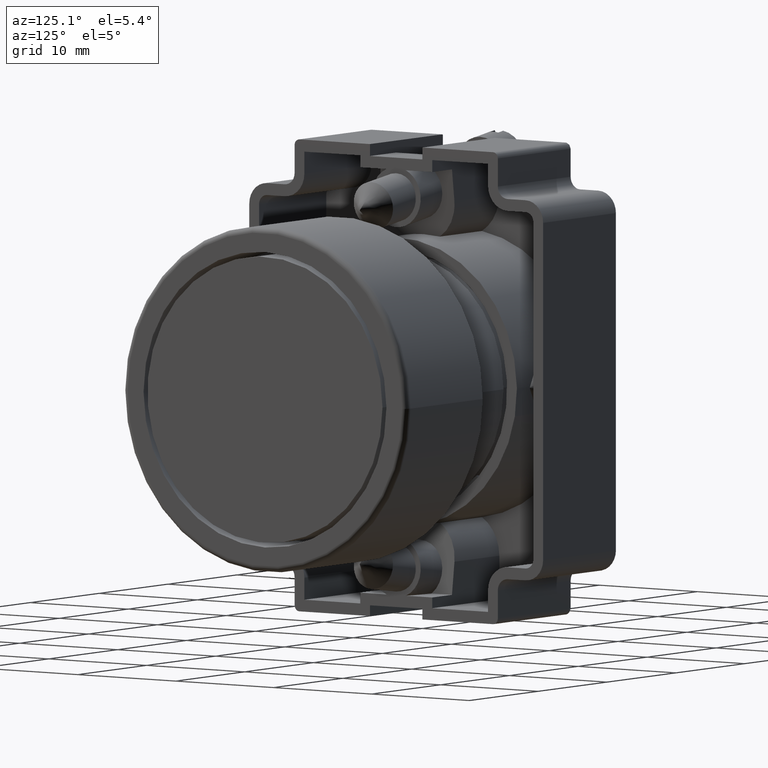
[diagram: clean part render]
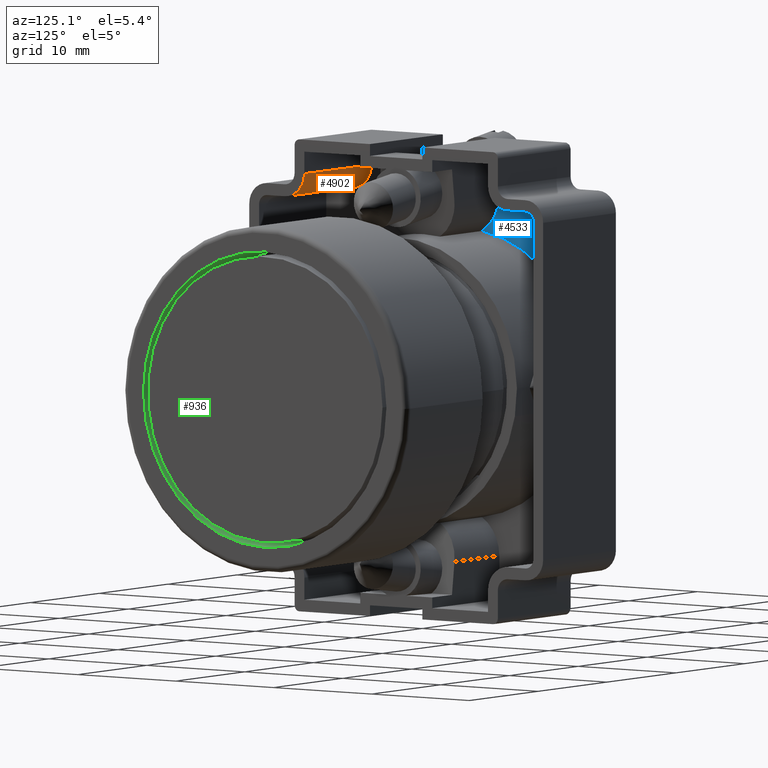
[diagram: same view with three faces highlighted in distinct colors, each labeled with its STEP entity id]
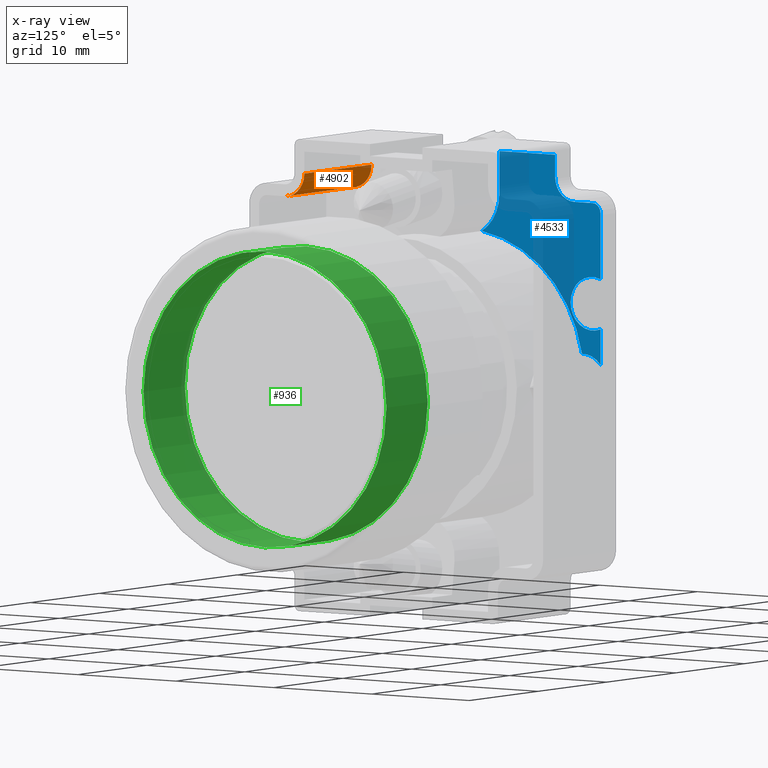
[diagram: x-ray of the same camera — body ghosted, the three highlighted faces saturated]
A machine part, auxiliary view with three faces highlighted in distinct colors.
The next image is the same camera in x-ray (body ghosted, the three faces saturated) — at least one of them is partly hidden behind the body in this view.
Their STEP definitions:

[orange] entity #4902 — the highlighted cylindrical surface (edge-blend (fillet) strip) has radius 2 mm, axis along (-1, 0, 0).
#4400=CARTESIAN_POINT('',(17.767219691723895,0.767864828157554,9.750000000000000));
#4401=VERTEX_POINT('',#4400);
#4408=CARTESIAN_POINT('',(15.767219691723893,-1.232135171842448,9.750000000000000));
#4409=VERTEX_POINT('',#4408);
#4410=CARTESIAN_POINT('',(17.767219691723895,-1.232135171842447,9.750000000000000));
#4411=DIRECTION('',(0.0,0.0,-1.0));
#4412=DIRECTION('',(0.0,-1.0,0.0));
#4413=AXIS2_PLACEMENT_3D('',#4410,#4411,#4412);
#4414=CIRCLE('',#4413,2.0);
#4415=EDGE_CURVE('',#4401,#4409,#4414,.F.);
#4861=CARTESIAN_POINT('',(17.767219691723895,0.767864828157554,0.0));
#4862=VERTEX_POINT('',#4861);
#4869=CARTESIAN_POINT('',(17.767219691723895,0.767864828157554,0.0));
#4870=DIRECTION('',(0.0,0.0,1.0));
#4871=VECTOR('',#4870,9.750000000000000);
#4872=LINE('',#4869,#4871);
#4873=EDGE_CURVE('',#4862,#4401,#4872,.T.);
#4878=CARTESIAN_POINT('',(17.767219691723895,-1.232135171842447,0.0));
#4879=DIRECTION('',(0.0,0.0,1.0));
#4880=DIRECTION('',(0.0,-1.0,0.0));
#4881=AXIS2_PLACEMENT_3D('',#4878,#4879,#4880);
#4882=CYLINDRICAL_SURFACE('',#4881,2.0);
#4883=ORIENTED_EDGE('',*,*,#4415,.F.);
#4884=ORIENTED_EDGE('',*,*,#4873,.F.);
#4885=CARTESIAN_POINT('',(15.767219691723893,-1.232135171842448,0.0));
#4886=VERTEX_POINT('',#4885);
#4887=CARTESIAN_POINT('',(17.767219691723895,-1.232135171842447,0.0));
#4888=DIRECTION('',(0.0,0.0,-1.0));
#4889=DIRECTION('',(0.0,-1.0,0.0));
#4890=AXIS2_PLACEMENT_3D('',#4887,#4888,#4889);
#4891=CIRCLE('',#4890,2.0);
#4892=EDGE_CURVE('',#4886,#4862,#4891,.T.);
#4893=ORIENTED_EDGE('',*,*,#4892,.F.);
#4894=CARTESIAN_POINT('',(15.767219691723893,-1.232135171842448,0.0));
#4895=DIRECTION('',(0.0,0.0,1.0));
#4896=VECTOR('',#4895,9.750000000000000);
#4897=LINE('',#4894,#4896);
#4898=EDGE_CURVE('',#4886,#4409,#4897,.T.);
#4899=ORIENTED_EDGE('',*,*,#4898,.T.);
#4900=EDGE_LOOP('',(#4883,#4884,#4893,#4899));
#4901=FACE_OUTER_BOUND('',#4900,.T.);
#4902=ADVANCED_FACE('',(#4901),#4882,.T.);

[blue] entity #4533 — the highlighted planar face has unit normal (-1, 0, 0).
#3817=CARTESIAN_POINT('',(3.063176321847591,22.258035989983284,9.750000000000000));
#3818=VERTEX_POINT('',#3817);
#3834=CARTESIAN_POINT('',(2.231433254096990,24.142864828157556,9.750000000000000));
#3835=VERTEX_POINT('',#3834);
#3842=CARTESIAN_POINT('',(0.817219691723898,22.392864828157553,9.750000000000000));
#3843=DIRECTION('',(0.0,0.0,-1.0));
#3844=DIRECTION('',(1.0,0.0,0.0));
#3845=AXIS2_PLACEMENT_3D('',#3842,#3843,#3844);
#3846=CIRCLE('',#3845,2.250000000000000);
#3847=EDGE_CURVE('',#3835,#3818,#3846,.T.);
#3969=CARTESIAN_POINT('',(12.822269763913566,12.044157796525628,9.750000000000000));
#3970=VERTEX_POINT('',#3969);
#3971=CARTESIAN_POINT('',(0.817219691723891,10.342864828157554,9.750000000000000));
#3972=DIRECTION('',(0.0,0.0,-1.000000000000000));
#3973=DIRECTION('',(-0.134831460674157,0.990868546888271,0.0));
#3974=AXIS2_PLACEMENT_3D('',#3971,#3972,#3973);
#3975=CIRCLE('',#3974,12.125000000000000);
#3976=EDGE_CURVE('',#3818,#3970,#3975,.T.);
#4060=CARTESIAN_POINT('',(9.420193776205201,24.142864828157556,9.750000000000000));
#4061=VERTEX_POINT('',#4060);
#4068=CARTESIAN_POINT('',(5.214245607242583,24.142864828157556,9.750000000000000));
#4069=VERTEX_POINT('',#4068);
#4070=CARTESIAN_POINT('',(7.317219691723892,23.342864828157555,9.750000000000000));
#4071=DIRECTION('',(0.0,0.0,-1.0));
#4072=DIRECTION('',(-1.0,0.0,0.0));
#4073=AXIS2_PLACEMENT_3D('',#4070,#4071,#4072);
#4074=CIRCLE('',#4073,2.250000000000000);
#4075=EDGE_CURVE('',#4061,#4069,#4074,.T.);
#4452=CARTESIAN_POINT('',(0.840775314883319,10.142864828157549,9.750000000000000));
#4453=DIRECTION('',(0.0,0.0,1.0));
#4454=DIRECTION('',(1.0,0.0,0.0));
#4455=AXIS2_PLACEMENT_3D('',#4452,#4453,#4454);
#4456=PLANE('',#4455);
#4457=ORIENTED_EDGE('',*,*,#3976,.F.);
#4458=ORIENTED_EDGE('',*,*,#3847,.F.);
#4459=CARTESIAN_POINT('',(5.214245607242583,24.142864828157556,9.750000000000000));
#4460=DIRECTION('',(-1.0,0.0,0.0));
#4461=VECTOR('',#4460,2.982812353145592);
#4462=LINE('',#4459,#4461);
#4463=EDGE_CURVE('',#3835,#4069,#4462,.F.);
#4464=ORIENTED_EDGE('',*,*,#4463,.T.);
#4465=ORIENTED_EDGE('',*,*,#4075,.F.);
#4466=CARTESIAN_POINT('',(14.967219691723891,24.142864828157556,9.750000000000000));
#4467=VERTEX_POINT('',#4466);
#4468=CARTESIAN_POINT('',(14.967219691723891,24.142864828157556,9.750000000000000));
#4469=DIRECTION('',(-1.0,0.0,0.0));
#4470=VECTOR('',#4469,5.547025915518690);
#4471=LINE('',#4468,#4470);
#4472=EDGE_CURVE('',#4061,#4467,#4471,.F.);
#4473=ORIENTED_EDGE('',*,*,#4472,.T.);
#4474=CARTESIAN_POINT('',(15.767219691723886,23.342864828157555,9.750000000000000));
#4475=VERTEX_POINT('',#4474);
#4476=CARTESIAN_POINT('',(14.967219691723891,23.342864828157555,9.750000000000000));
#4477=DIRECTION('',(0.0,0.0,1.0));
#4478=DIRECTION('',(1.0,0.0,0.0));
#4479=AXIS2_PLACEMENT_3D('',#4476,#4477,#4478);
#4480=CIRCLE('',#4479,0.799999999999995);
#4481=EDGE_CURVE('',#4467,#4475,#4480,.F.);
#4482=ORIENTED_EDGE('',*,*,#4481,.T.);
#4483=CARTESIAN_POINT('',(15.767219691723886,21.517864828157556,9.750000000000000));
#4484=VERTEX_POINT('',#4483);
#4485=CARTESIAN_POINT('',(15.767219691723886,21.517864828157556,9.750000000000000));
#4486=DIRECTION('',(0.0,1.0,0.0));
#4487=VECTOR('',#4486,1.824999999999999);
#4488=LINE('',#4485,#4487);
#4489=EDGE_CURVE('',#4475,#4484,#4488,.F.);
#4490=ORIENTED_EDGE('',*,*,#4489,.T.);
#4491=CARTESIAN_POINT('',(17.767219691723891,19.517864828157556,9.750000000000000));
#4492=VERTEX_POINT('',#4491);
#4493=CARTESIAN_POINT('',(17.767219691723891,21.517864828157556,9.750000000000000));
#4494=DIRECTION('',(0.0,0.0,-1.0));
#4495=DIRECTION('',(1.0,0.0,0.0));
#4496=AXIS2_PLACEMENT_3D('',#4493,#4494,#4495);
#4497=CIRCLE('',#4496,2.000000000000000);
#4498=EDGE_CURVE('',#4484,#4492,#4497,.F.);
#4499=ORIENTED_EDGE('',*,*,#4498,.T.);
#4500=CARTESIAN_POINT('',(19.617219691723896,19.517864828157556,9.749999999999998));
#4501=VERTEX_POINT('',#4500);
#4502=CARTESIAN_POINT('',(19.617219691723896,19.517864828157556,9.749999999999998));
#4503=DIRECTION('',(-1.0,0.0,0.0));
#4504=VECTOR('',#4503,1.850000000000005);
#4505=LINE('',#4502,#4504);
#4506=EDGE_CURVE('',#4492,#4501,#4505,.F.);
#4507=ORIENTED_EDGE('',*,*,#4506,.T.);
#4508=CARTESIAN_POINT('',(19.617219691723896,13.817864828157555,9.749999999999998));
#4509=VERTEX_POINT('',#4508);
#4510=CARTESIAN_POINT('',(19.617219691723896,13.817864828157555,9.749999999999998));
#4511=DIRECTION('',(0.0,1.0,0.0));
#4512=VECTOR('',#4511,5.700000000000001);
#4513=LINE('',#4510,#4512);
#4514=EDGE_CURVE('',#4501,#4509,#4513,.F.);
#4515=ORIENTED_EDGE('',*,*,#4514,.T.);
#4516=CARTESIAN_POINT('',(15.967219691723900,13.817864828157555,9.750000000000000));
#4517=VERTEX_POINT('',#4516);
#4518=CARTESIAN_POINT('',(15.967219691723900,13.817864828157555,9.750000000000000));
#4519=DIRECTION('',(1.0,0.0,0.0));
#4520=VECTOR('',#4519,3.649999999999997);
#4521=LINE('',#4518,#4520);
#4522=EDGE_CURVE('',#4517,#4509,#4521,.T.);
#4523=ORIENTED_EDGE('',*,*,#4522,.F.);
#4524=CARTESIAN_POINT('',(15.967219691723900,10.142864828157554,9.750000000000000));
#4525=DIRECTION('',(0.0,0.0,1.0));
#4526=DIRECTION('',(0.0,-1.0,0.0));
#4527=AXIS2_PLACEMENT_3D('',#4524,#4525,#4526);
#4528=CIRCLE('',#4527,3.675000000000014);
#4529=EDGE_CURVE('',#3970,#4517,#4528,.F.);
#4530=ORIENTED_EDGE('',*,*,#4529,.F.);
#4531=EDGE_LOOP('',(#4457,#4458,#4464,#4465,#4473,#4482,#4490,#4499,#4507,#4515,#4523,#4530));
#4532=FACE_OUTER_BOUND('',#4531,.T.);
#4533=ADVANCED_FACE('',(#4532),#4456,.F.);

[green] entity #936 — the highlighted cylindrical surface (bore or boss wall) has radius 12.4 mm, axis along (1, -0, 0).
#202=CARTESIAN_POINT('',(2.748486254077103,12.368314320504645,0.0));
#203=VERTEX_POINT('',#202);
#204=CARTESIAN_POINT('',(2.748486254077101,-0.031685679495357,0.0));
#205=DIRECTION('',(1.0,0.0,0.0));
#206=DIRECTION('',(0.0,1.0,0.0));
#207=AXIS2_PLACEMENT_3D('',#204,#205,#206);
#208=CIRCLE('',#207,12.400000000000002);
#209=EDGE_CURVE('',#203,#203,#208,.T.);
#917=CARTESIAN_POINT('',(-0.251513745922898,-0.031685679495357,0.0));
#918=DIRECTION('',(1.0,-9.219481E-019,0.0));
#919=DIRECTION('',(0.0,1.0,0.0));
#920=AXIS2_PLACEMENT_3D('',#917,#918,#919);
#921=CYLINDRICAL_SURFACE('',#920,12.400000000000002);
#922=CARTESIAN_POINT('',(-3.251513745922899,12.368314320504645,0.0));
#923=VERTEX_POINT('',#922);
#924=CARTESIAN_POINT('',(-3.251513745922900,-0.031685679495357,0.0));
#925=DIRECTION('',(1.0,0.0,0.0));
#926=DIRECTION('',(0.0,1.0,0.0));
#927=AXIS2_PLACEMENT_3D('',#924,#925,#926);
#928=CIRCLE('',#927,12.400000000000002);
#929=EDGE_CURVE('',#923,#923,#928,.T.);
#930=ORIENTED_EDGE('',*,*,#929,.F.);
#931=EDGE_LOOP('',(#930));
#932=FACE_OUTER_BOUND('',#931,.T.);
#933=ORIENTED_EDGE('',*,*,#209,.T.);
#934=EDGE_LOOP('',(#933));
#935=FACE_BOUND('',#934,.T.);
#936=ADVANCED_FACE('',(#932,#935),#921,.F.);